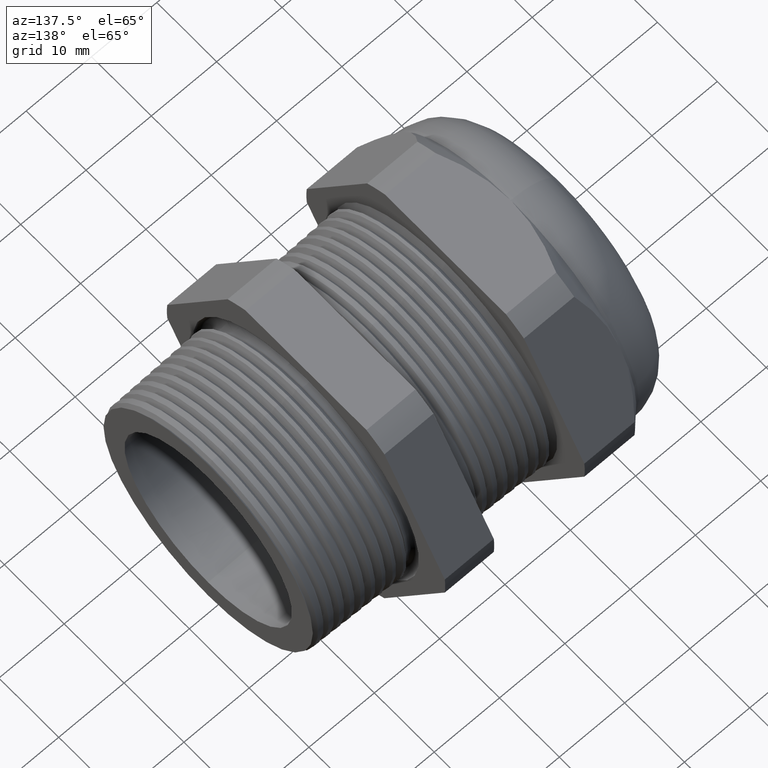
[diagram: clean part render]
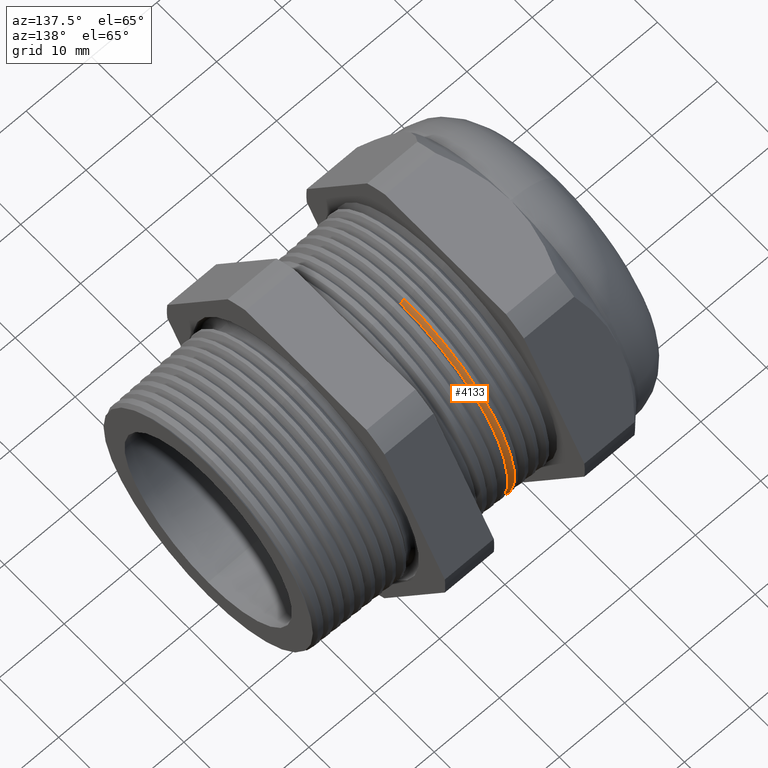
[diagram: same view with one face highlighted and labeled with its STEP entity id]
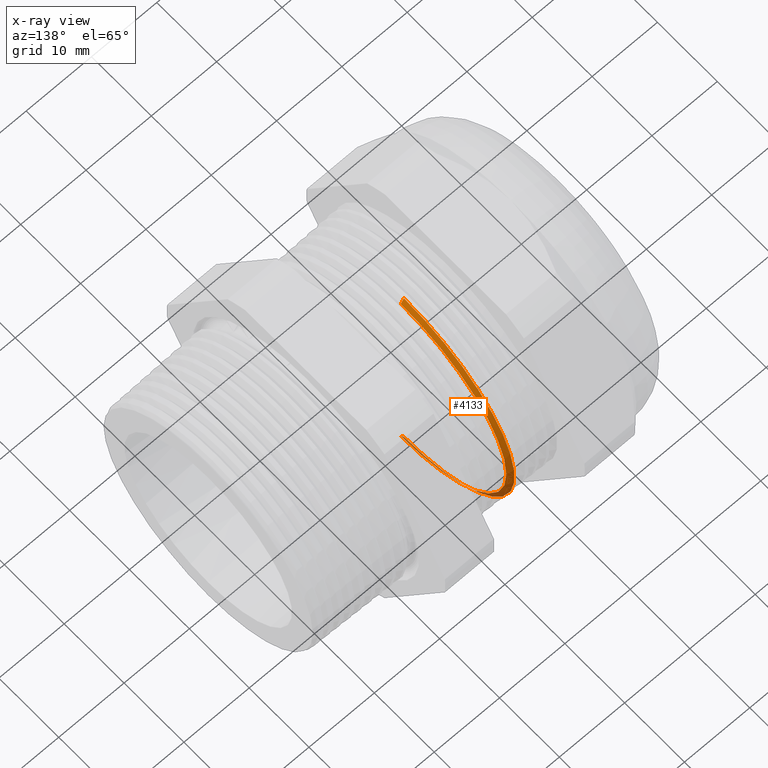
[diagram: x-ray of the same camera — body ghosted, the highlighted face saturated]
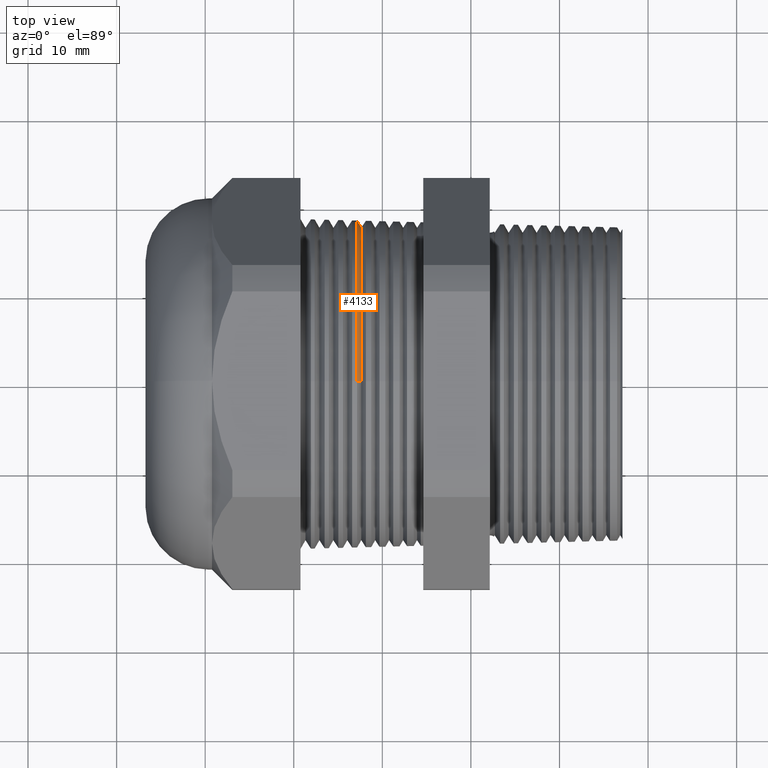
[diagram: same view with one face highlighted and labeled with its STEP entity id]
A machine part, auxiliary view. The second image highlights one B-rep face of the part: STEP entity #4133.
The next image is the same camera in x-ray: the body ghosted, the highlighted face saturated — about 8% of this face is hidden behind the body in this view.
A second angle (top view) of the same face is appended — the face is thin or edge-on in the first view.
In plain terms, the highlighted conical surface has half-angle 61.5 deg.
Its self-contained STEP definition (entity closure, byte-faithful):
#625 = DIRECTION ( 'NONE',  ( 0.0000000000000000000, 0.0000000000000000000, 1.000000000000000000 ) ) ;
#626 = DIRECTION ( 'NONE',  ( 1.000000000000000000, 0.0000000000000000000, 0.0000000000000000000 ) ) ;
#627 = AXIS2_PLACEMENT_3D ( 'NONE', #634, #626, #625 ) ;
#628 = CIRCLE ( 'NONE', #627, 0.7284122278545599500 ) ;
#634 = CARTESIAN_POINT ( 'NONE',  ( -0.8994467536129581200, 0.0000000000000000000, 0.0000000000000000000 ) ) ;
#635 = CARTESIAN_POINT ( 'NONE',  ( -0.8994467536129581200, 0.0000000000000000000, 0.7284122278545597200 ) ) ;
#636 = CARTESIAN_POINT ( 'NONE',  ( -0.8994467536129581200, 8.920477033018791700E-017, -0.7284122278545597200 ) ) ;
#3659 = DIRECTION ( 'NONE',  ( -0.4771587602596196200, 0.0000000000000000000, 0.8788171126619591700 ) ) ;
#3660 = VECTOR ( 'NONE', #3659, 39.37007874015748900 ) ;
#3661 = CARTESIAN_POINT ( 'NONE',  ( -0.9030236220472441800, 0.0000000000000000000, 0.7349999999999996500 ) ) ;
#3662 = DIRECTION ( 'NONE',  ( 0.0000000000000000000, 0.0000000000000000000, 1.000000000000000000 ) ) ;
#3663 = DIRECTION ( 'NONE',  ( -1.000000000000000000, 0.0000000000000000000, 0.0000000000000000000 ) ) ;
#3664 = CARTESIAN_POINT ( 'NONE',  ( -0.9030236220472441800, 0.0000000000000000000, 0.0000000000000000000 ) ) ;
#3665 = AXIS2_PLACEMENT_3D ( 'NONE', #3664, #3663, #3662 ) ;
#3666 = LINE ( 'NONE', #3661, #3660 ) ;
#3667 = CONICAL_SURFACE ( 'NONE', #3665, 0.7349999999999996500, 1.073377489976499800 ) ;
#3668 = FACE_OUTER_BOUND ( 'NONE', #4120, .T. ) ;
#3669 = DIRECTION ( 'NONE',  ( -0.4771587602596196200, 1.076240564057387000E-016, -0.8788171126619591700 ) ) ;
#3670 = VECTOR ( 'NONE', #3669, 39.37007874015748900 ) ;
#3671 = CARTESIAN_POINT ( 'NONE',  ( -0.9030236220472441800, 9.001153973733042200E-017, -0.7349999999999996500 ) ) ;
#3672 = LINE ( 'NONE', #3671, #3670 ) ;
#3808 = CARTESIAN_POINT ( 'NONE',  ( -0.8809846029526776600, 0.0000000000000000000, 0.6944091762748931800 ) ) ;
#3814 = DIRECTION ( 'NONE',  ( 0.0000000000000000000, 0.0000000000000000000, -1.000000000000000000 ) ) ;
#3815 = DIRECTION ( 'NONE',  ( 1.000000000000000000, 0.0000000000000000000, 0.0000000000000000000 ) ) ;
#3816 = CARTESIAN_POINT ( 'NONE',  ( -0.8809846029526776600, 0.0000000000000000000, 0.0000000000000000000 ) ) ;
#3817 = AXIS2_PLACEMENT_3D ( 'NONE', #3816, #3815, #3814 ) ;
#3818 = CIRCLE ( 'NONE', #3817, 0.6944091762748931800 ) ;
#3823 = CARTESIAN_POINT ( 'NONE',  ( -0.8809846029526776600, 8.712268391627387900E-017, -0.6944091762748931800 ) ) ;
#4120 = EDGE_LOOP ( 'NONE', ( #4130, #4132, #4143, #4145 ) ) ;
#4130 = ORIENTED_EDGE ( 'NONE', *, *, #4231, .F. ) ;
#4131 = EDGE_CURVE ( 'NONE', #4227, #4568, #3672, .T. ) ;
#4132 = ORIENTED_EDGE ( 'NONE', *, *, #4131, .T. ) ;
#4133 = ADVANCED_FACE ( 'NONE', ( #3668 ), #3667, .T. ) ;
#4134 = EDGE_CURVE ( 'NONE', #4235, #4570, #3666, .T. ) ;
#4143 = ORIENTED_EDGE ( 'NONE', *, *, #4574, .T. ) ;
#4145 = ORIENTED_EDGE ( 'NONE', *, *, #4134, .F. ) ;
#4227 = VERTEX_POINT ( 'NONE', #3823 ) ;
#4231 = EDGE_CURVE ( 'NONE', #4227, #4235, #3818, .T. ) ;
#4235 = VERTEX_POINT ( 'NONE', #3808 ) ;
#4568 = VERTEX_POINT ( 'NONE', #636 ) ;
#4570 = VERTEX_POINT ( 'NONE', #635 ) ;
#4574 = EDGE_CURVE ( 'NONE', #4568, #4570, #628, .T. ) ;